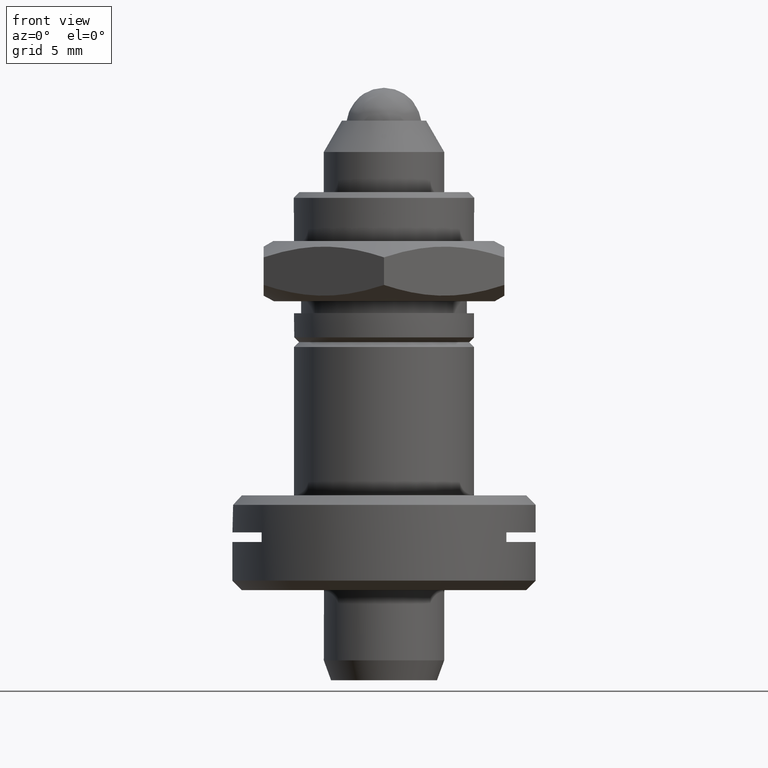
[diagram: clean part render]
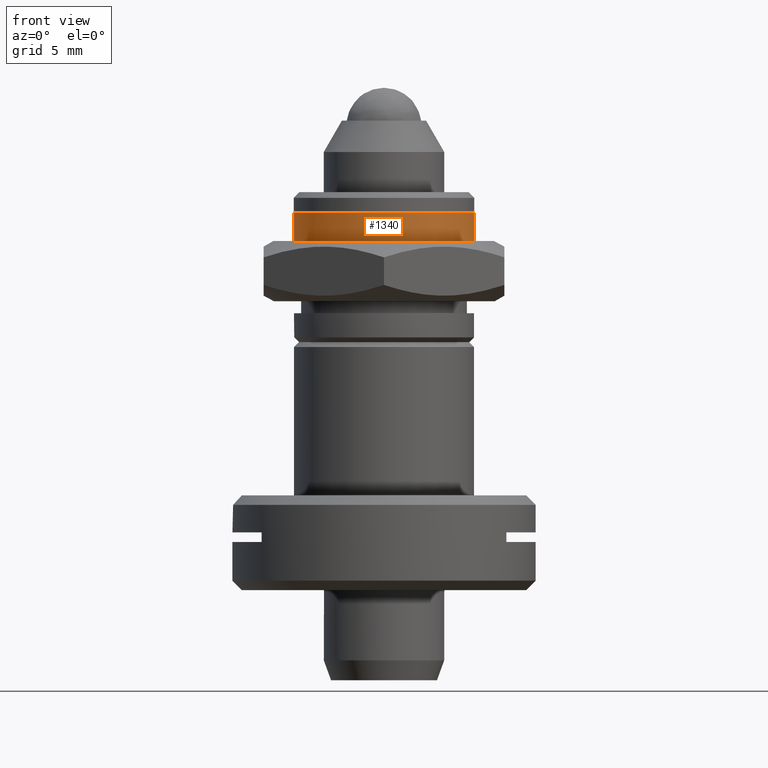
[diagram: same view with one face highlighted and labeled with its STEP entity id]
A machine part, front view. The second image highlights one B-rep face of the part: STEP entity #1340.
In plain terms, the highlighted cylindrical surface (bore or boss wall) has radius 4.7498 mm, axis along (0, 0, 1).
Its self-contained STEP definition (entity closure, byte-faithful):
#74 = DIRECTION ( 'NONE',  ( 0.000000000000000000, 0.000000000000000000, 1.000000000000000000 ) ) ;
#142 = DIRECTION ( 'NONE',  ( -0.000000000000000000, -0.000000000000000000, -1.000000000000000000 ) ) ;
#411 = EDGE_LOOP ( 'NONE', ( #471 ) ) ;
#466 = VERTEX_POINT ( 'NONE', #1042 ) ;
#471 = ORIENTED_EDGE ( 'NONE', *, *, #1163, .T. ) ;
#617 = CARTESIAN_POINT ( 'NONE',  ( 0.000000000000000000, 0.000000000000000000, -8.089900000015859405 ) ) ;
#767 = DIRECTION ( 'NONE',  ( 0.000000000000000000, 0.000000000000000000, 1.000000000000000000 ) ) ;
#938 = AXIS2_PLACEMENT_3D ( 'NONE', #1349, #142, #2515 ) ;
#963 = CARTESIAN_POINT ( 'NONE',  ( 0.000000000000000000, 0.000000000000000000, 1.337328265961435836 ) ) ;
#1042 = CARTESIAN_POINT ( 'NONE',  ( 4.749799999956394458, 0.000000000000000000, -8.089900000015859405 ) ) ;
#1155 = FACE_OUTER_BOUND ( 'NONE', #2340, .T. ) ;
#1163 = EDGE_CURVE ( 'NONE', #1209, #1209, #1379, .T. ) ;
#1209 = VERTEX_POINT ( 'NONE', #1224 ) ;
#1224 = CARTESIAN_POINT ( 'NONE',  ( 4.749800000000000466, 0.000000000000000000, -6.577200000000000379 ) ) ;
#1340 = ADVANCED_FACE ( 'NONE', ( #1155, #2516 ), #2538, .T. ) ;
#1349 = CARTESIAN_POINT ( 'NONE',  ( 0.000000000000000000, 0.000000000000000000, -6.577200000000000379 ) ) ;
#1379 = CIRCLE ( 'NONE', #938, 4.749800000000000466 ) ;
#1434 = DIRECTION ( 'NONE',  ( 1.000000000000000000, 0.000000000000000000, 0.000000000000000000 ) ) ;
#1557 = ORIENTED_EDGE ( 'NONE', *, *, #2071, .T. ) ;
#1613 = AXIS2_PLACEMENT_3D ( 'NONE', #963, #767, #1714 ) ;
#1714 = DIRECTION ( 'NONE',  ( 1.000000000000000000, 0.000000000000000000, 0.000000000000000000 ) ) ;
#1927 = CIRCLE ( 'NONE', #2256, 4.749799999956394458 ) ;
#2071 = EDGE_CURVE ( 'NONE', #466, #466, #1927, .T. ) ;
#2256 = AXIS2_PLACEMENT_3D ( 'NONE', #617, #74, #1434 ) ;
#2340 = EDGE_LOOP ( 'NONE', ( #1557 ) ) ;
#2515 = DIRECTION ( 'NONE',  ( 1.000000000000000000, 0.000000000000000000, 0.000000000000000000 ) ) ;
#2516 = FACE_OUTER_BOUND ( 'NONE', #411, .T. ) ;
#2538 = CYLINDRICAL_SURFACE ( 'NONE', #1613, 4.749800000000000466 ) ;